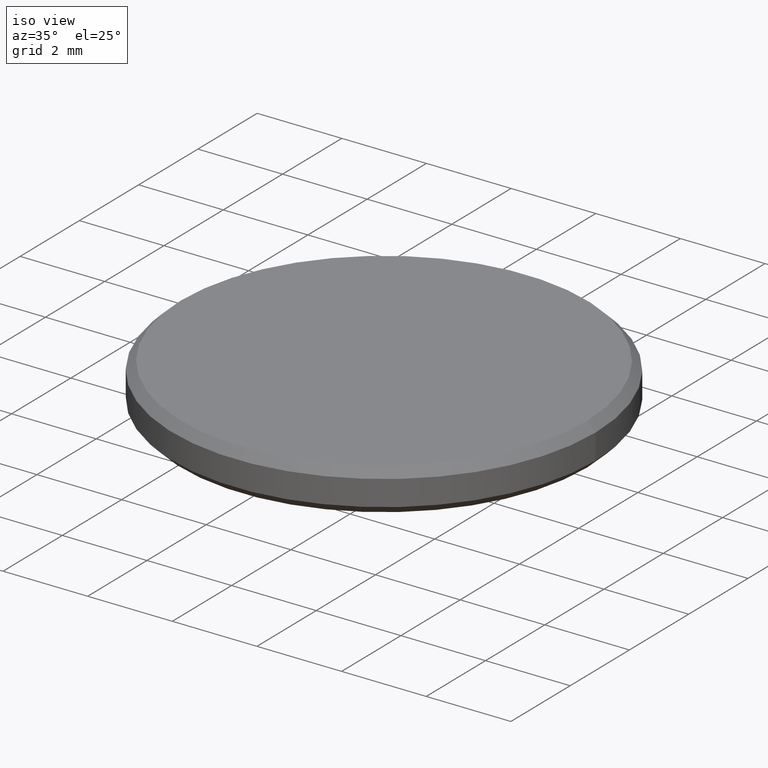
[diagram: clean part render]
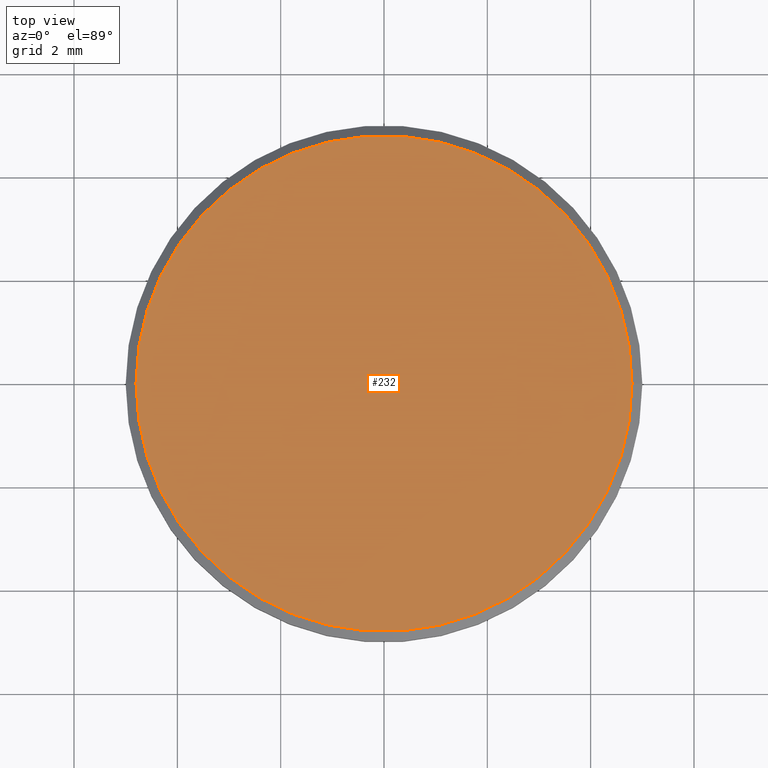
[diagram: tour spotlight — one face highlighted and labeled with its STEP entity id]
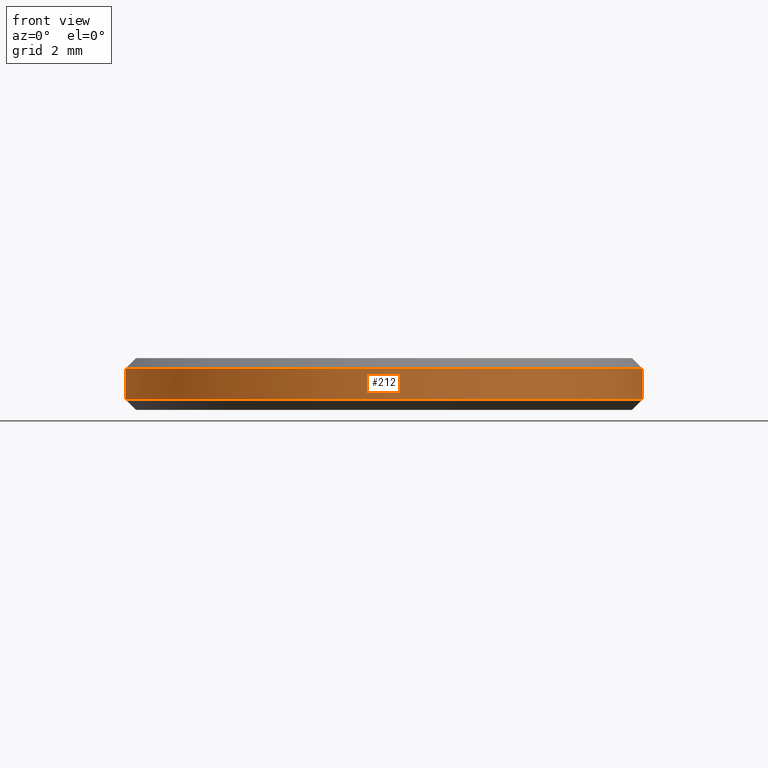
[diagram: tour spotlight — one face highlighted and labeled with its STEP entity id]
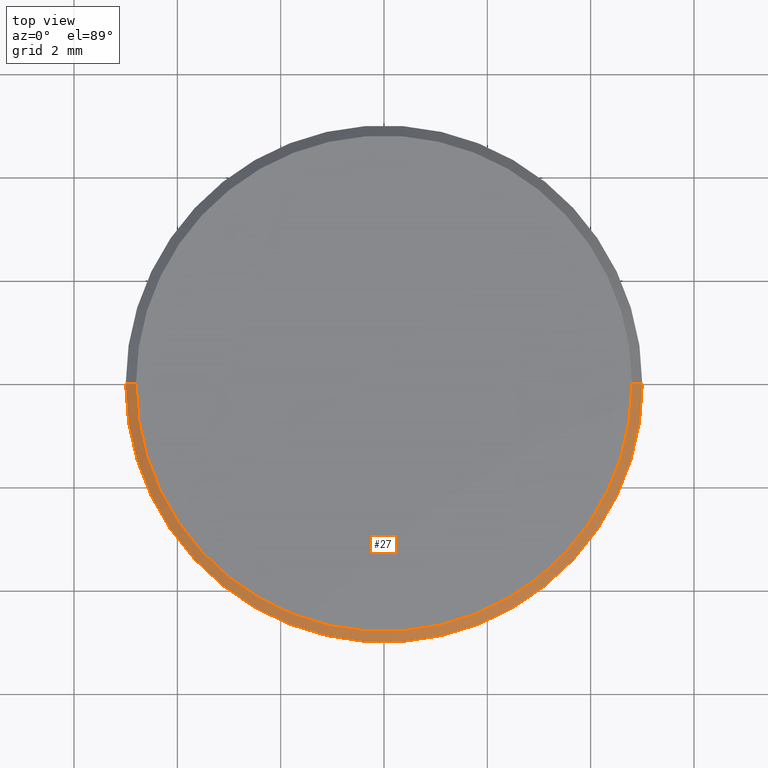
[diagram: tour spotlight — one face highlighted and labeled with its STEP entity id]
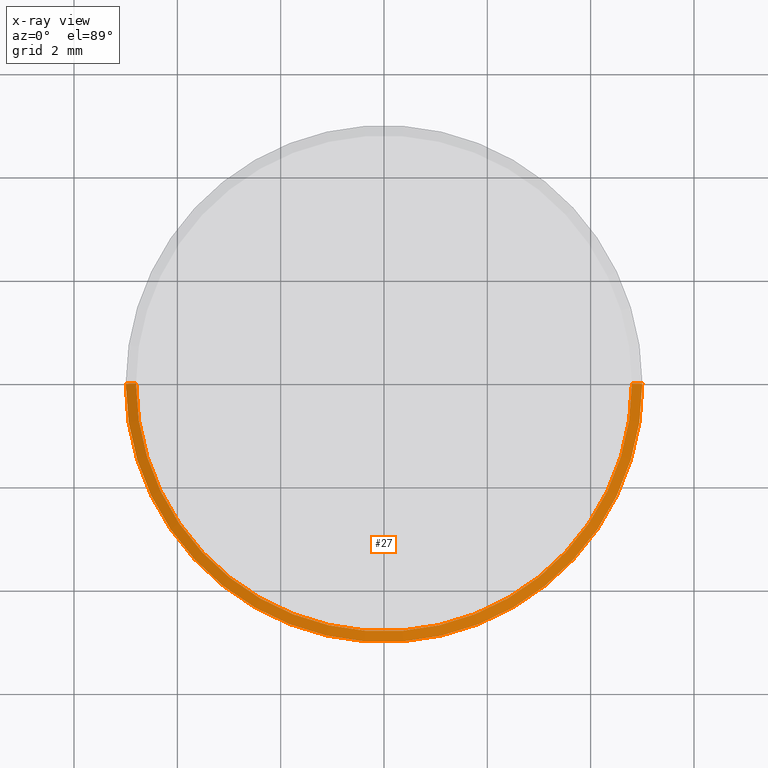
[diagram: x-ray of the same camera — body ghosted, this tour face saturated]
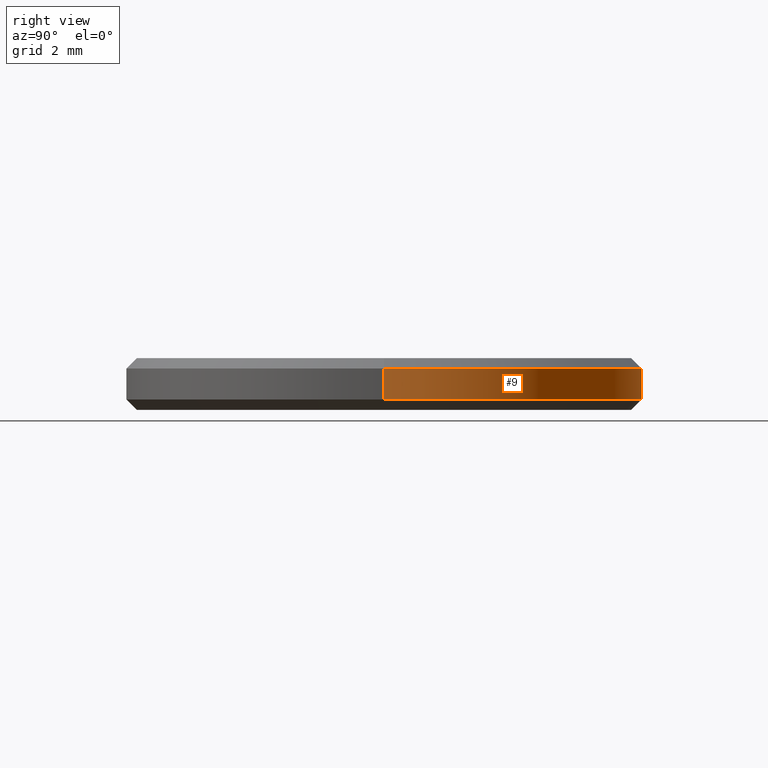
[diagram: tour spotlight — one face highlighted and labeled with its STEP entity id]
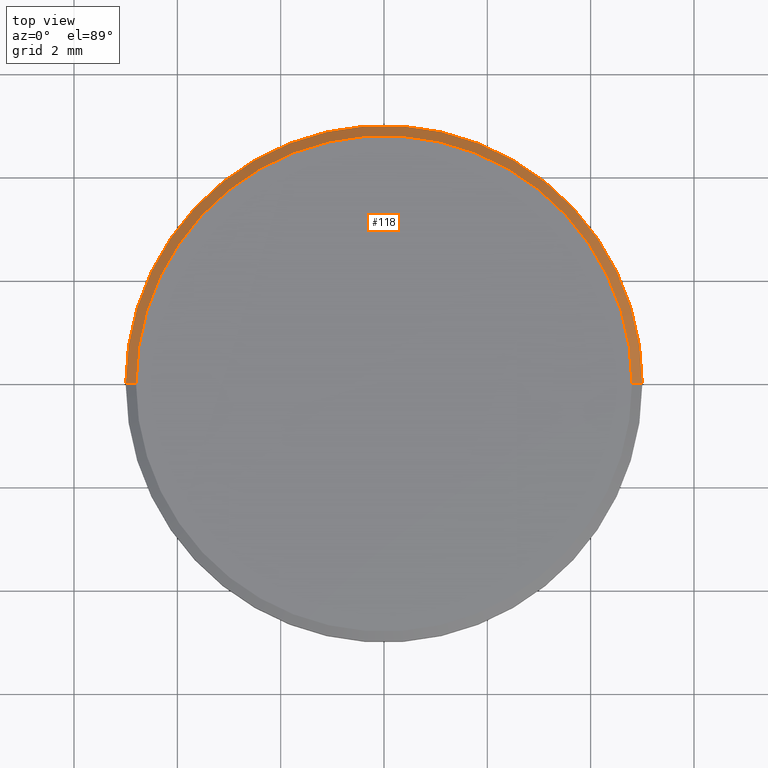
[diagram: tour spotlight — one face highlighted and labeled with its STEP entity id]
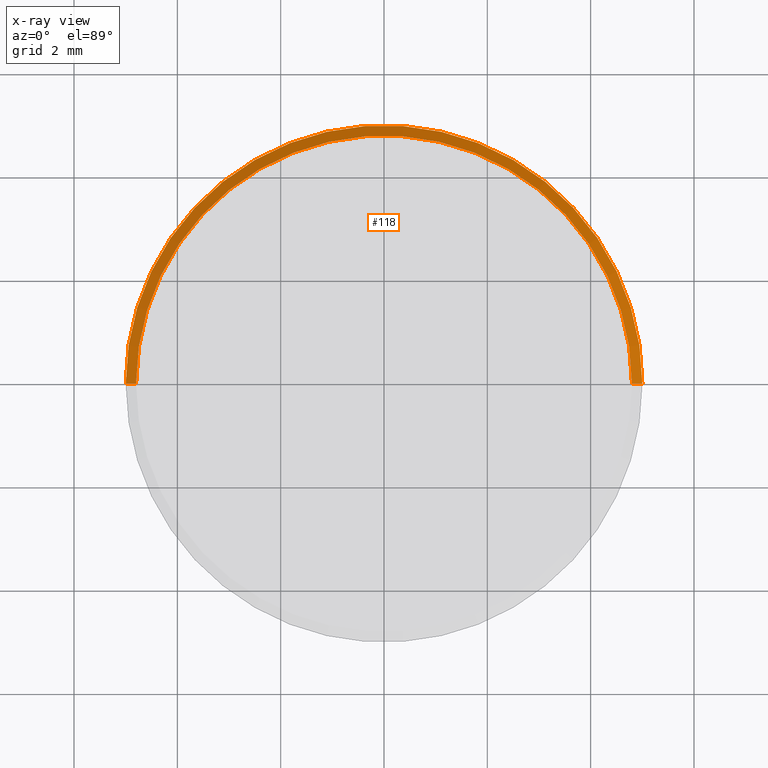
[diagram: x-ray of the same camera — body ghosted, this tour face saturated]
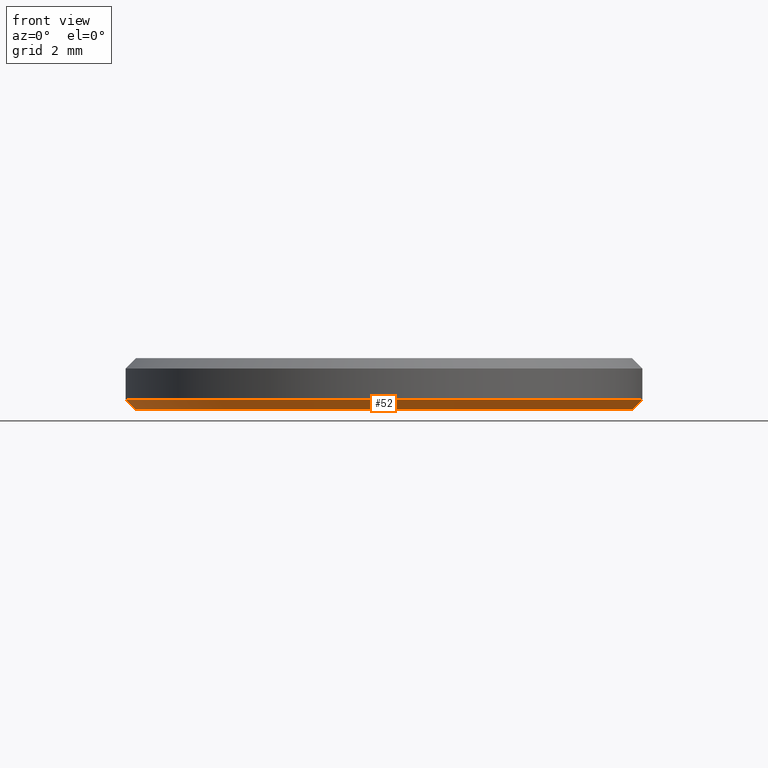
[diagram: tour spotlight — one face highlighted and labeled with its STEP entity id]
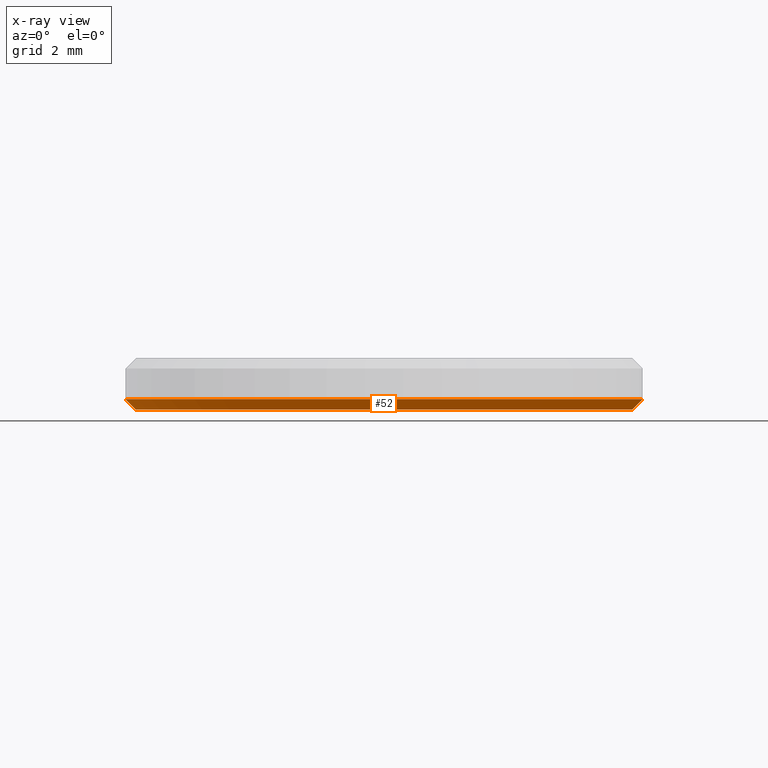
[diagram: x-ray of the same camera — body ghosted, this tour face saturated]
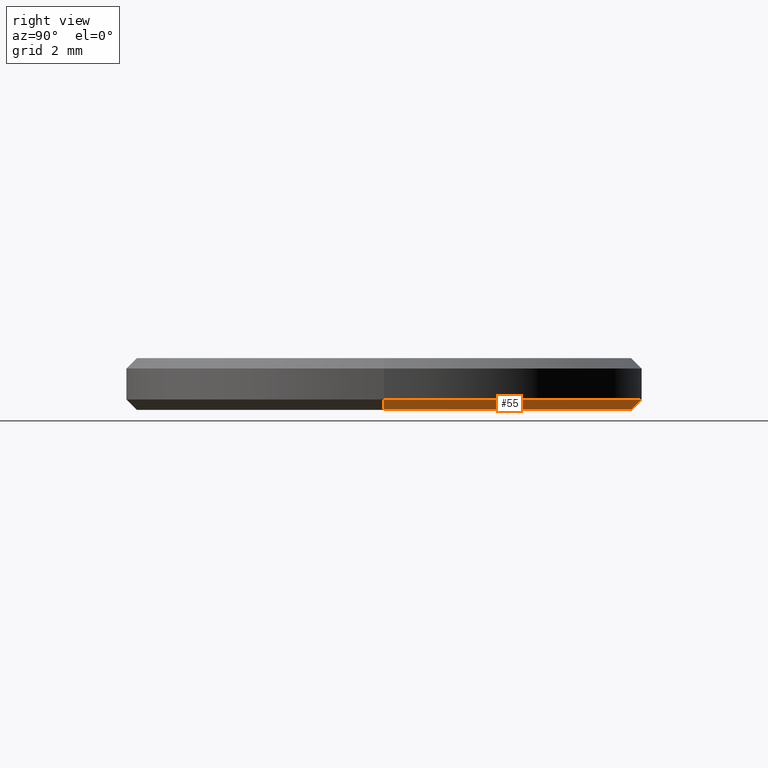
[diagram: tour spotlight — one face highlighted and labeled with its STEP entity id]
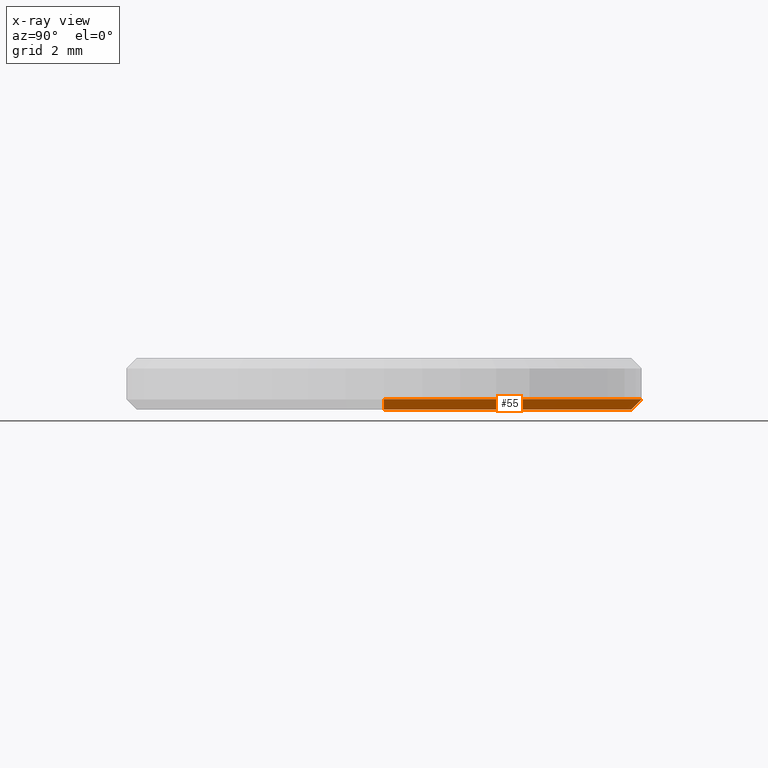
[diagram: x-ray of the same camera — body ghosted, this tour face saturated]
A machine part: a face-by-face anatomy tour. The part has 8 B-rep faces; the first image is the clean iso view, then the 7 largest visible faces are spotlighted one at a time (largest first), each with its STEP entity span.

Face 1 — top view, entity #232. In plain terms, the highlighted planar face has unit normal (0, 0, 1).
Definition (entity closure, byte-faithful):
#3 = FACE_OUTER_BOUND ( 'NONE', #76, .T. ) ;
#28 = AXIS2_PLACEMENT_3D ( 'NONE', #152, #227, #58 ) ;
#37 = CIRCLE ( 'NONE', #45, 4.800000000000002487 ) ;
#45 = AXIS2_PLACEMENT_3D ( 'NONE', #121, #124, #46 ) ;
#46 = DIRECTION ( 'NONE',  ( 1.000000000000000000, 0.000000000000000000, 0.000000000000000000 ) ) ;
#49 = AXIS2_PLACEMENT_3D ( 'NONE', #213, #120, #179 ) ;
#58 = DIRECTION ( 'NONE',  ( 1.000000000000000000, 0.000000000000000000, -0.000000000000000000 ) ) ;
#73 = EDGE_CURVE ( 'NONE', #189, #115, #37, .T. ) ;
#76 = EDGE_LOOP ( 'NONE', ( #127, #134 ) ) ;
#77 = PLANE ( 'NONE',  #28 ) ;
#115 = VERTEX_POINT ( 'NONE', #214 ) ;
#120 = DIRECTION ( 'NONE',  ( 0.000000000000000000, 0.000000000000000000, 1.000000000000000000 ) ) ;
#121 = CARTESIAN_POINT ( 'NONE',  ( 0.000000000000000000, 0.000000000000000000, 1.000000000000000000 ) ) ;
#124 = DIRECTION ( 'NONE',  ( 0.000000000000000000, 0.000000000000000000, 1.000000000000000000 ) ) ;
#127 = ORIENTED_EDGE ( 'NONE', *, *, #73, .T. ) ;
#134 = ORIENTED_EDGE ( 'NONE', *, *, #166, .T. ) ;
#149 = CIRCLE ( 'NONE', #49, 4.800000000000002487 ) ;
#152 = CARTESIAN_POINT ( 'NONE',  ( 0.000000000000000000, 0.000000000000000000, 1.000000000000000000 ) ) ;
#166 = EDGE_CURVE ( 'NONE', #115, #189, #149, .T. ) ;
#179 = DIRECTION ( 'NONE',  ( 1.000000000000000000, 0.000000000000000000, 0.000000000000000000 ) ) ;
#182 = CARTESIAN_POINT ( 'NONE',  ( -4.800000000000002487, 0.000000000000000000, 1.000000000000000000 ) ) ;
#189 = VERTEX_POINT ( 'NONE', #182 ) ;
#213 = CARTESIAN_POINT ( 'NONE',  ( 0.000000000000000000, 0.000000000000000000, 1.000000000000000000 ) ) ;
#214 = CARTESIAN_POINT ( 'NONE',  ( 4.800000000000002487, 6.000769315822031726E-16, 1.000000000000000000 ) ) ;
#227 = DIRECTION ( 'NONE',  ( 0.000000000000000000, 0.000000000000000000, 1.000000000000000000 ) ) ;
#232 = ADVANCED_FACE ( 'NONE', ( #3 ), #77, .T. ) ;

Face 2 — front view, entity #212. In plain terms, the highlighted cylindrical surface (partial cylindrical patch) has radius 5 mm, axis along (-0, -0, -1).
Definition (entity closure, byte-faithful):
#2 = DIRECTION ( 'NONE',  ( 0.000000000000000000, 0.000000000000000000, -1.000000000000000000 ) ) ;
#4 = AXIS2_PLACEMENT_3D ( 'NONE', #57, #190, #123 ) ;
#21 = CYLINDRICAL_SURFACE ( 'NONE', #79, 5.000000000000000000 ) ;
#39 = EDGE_CURVE ( 'NONE', #91, #151, #164, .T. ) ;
#42 = EDGE_CURVE ( 'NONE', #43, #92, #72, .T. ) ;
#43 = VERTEX_POINT ( 'NONE', #48 ) ;
#48 = CARTESIAN_POINT ( 'NONE',  ( -5.000000000000000000, 0.000000000000000000, 0.1999999999999996503 ) ) ;
#57 = CARTESIAN_POINT ( 'NONE',  ( 0.000000000000000000, 0.000000000000000000, 0.1999999999999996503 ) ) ;
#72 = CIRCLE ( 'NONE', #4, 5.000000000000000000 ) ;
#79 = AXIS2_PLACEMENT_3D ( 'NONE', #168, #210, #97 ) ;
#84 = EDGE_CURVE ( 'NONE', #91, #92, #201, .T. ) ;
#91 = VERTEX_POINT ( 'NONE', #103 ) ;
#92 = VERTEX_POINT ( 'NONE', #156 ) ;
#97 = DIRECTION ( 'NONE',  ( -1.000000000000000000, 0.000000000000000000, 0.000000000000000000 ) ) ;
#103 = CARTESIAN_POINT ( 'NONE',  ( 5.000000000000000000, 6.123233995736766282E-16, 0.8000000000000012657 ) ) ;
#111 = ORIENTED_EDGE ( 'NONE', *, *, #42, .T. ) ;
#119 = DIRECTION ( 'NONE',  ( -0.000000000000000000, -0.000000000000000000, -1.000000000000000000 ) ) ;
#122 = VECTOR ( 'NONE', #155, 1000.000000000000000 ) ;
#123 = DIRECTION ( 'NONE',  ( 1.000000000000000000, 0.000000000000000000, 0.000000000000000000 ) ) ;
#125 = VECTOR ( 'NONE', #119, 1000.000000000000000 ) ;
#131 = ORIENTED_EDGE ( 'NONE', *, *, #39, .T. ) ;
#139 = CARTESIAN_POINT ( 'NONE',  ( -5.000000000000000000, 0.000000000000000000, 0.8000000000000012657 ) ) ;
#140 = CARTESIAN_POINT ( 'NONE',  ( 5.000000000000000000, 6.123233995736766282E-16, 1.000000000000000000 ) ) ;
#148 = DIRECTION ( 'NONE',  ( 1.000000000000000000, 0.000000000000000000, 0.000000000000000000 ) ) ;
#151 = VERTEX_POINT ( 'NONE', #139 ) ;
#155 = DIRECTION ( 'NONE',  ( -0.000000000000000000, -0.000000000000000000, -1.000000000000000000 ) ) ;
#156 = CARTESIAN_POINT ( 'NONE',  ( 5.000000000000000000, 6.123233995736766282E-16, 0.1999999999999996503 ) ) ;
#164 = CIRCLE ( 'NONE', #237, 5.000000000000000000 ) ;
#168 = CARTESIAN_POINT ( 'NONE',  ( 0.000000000000000000, 0.000000000000000000, 1.000000000000000000 ) ) ;
#177 = CARTESIAN_POINT ( 'NONE',  ( -5.000000000000000000, 0.000000000000000000, 1.000000000000000000 ) ) ;
#181 = EDGE_CURVE ( 'NONE', #151, #43, #197, .T. ) ;
#185 = ORIENTED_EDGE ( 'NONE', *, *, #181, .T. ) ;
#190 = DIRECTION ( 'NONE',  ( -0.000000000000000000, -0.000000000000000000, 1.000000000000000000 ) ) ;
#195 = EDGE_LOOP ( 'NONE', ( #206, #131, #185, #111 ) ) ;
#197 = LINE ( 'NONE', #177, #122 ) ;
#201 = LINE ( 'NONE', #140, #125 ) ;
#206 = ORIENTED_EDGE ( 'NONE', *, *, #84, .F. ) ;
#210 = DIRECTION ( 'NONE',  ( -0.000000000000000000, -0.000000000000000000, -1.000000000000000000 ) ) ;
#212 = ADVANCED_FACE ( 'NONE', ( #238 ), #21, .T. ) ;
#222 = CARTESIAN_POINT ( 'NONE',  ( 0.000000000000000000, 0.000000000000000000, 0.8000000000000012657 ) ) ;
#237 = AXIS2_PLACEMENT_3D ( 'NONE', #222, #2, #148 ) ;
#238 = FACE_OUTER_BOUND ( 'NONE', #195, .T. ) ;

Face 3 — top view, entity #27. An x-ray twin of the same camera follows (body ghosted, this face saturated) — the face is partly hidden behind the body. In plain terms, the highlighted conical surface has half-angle 45 deg.
Definition (entity closure, byte-faithful):
#1 = FACE_OUTER_BOUND ( 'NONE', #208, .T. ) ;
#2 = DIRECTION ( 'NONE',  ( 0.000000000000000000, 0.000000000000000000, -1.000000000000000000 ) ) ;
#15 = LINE ( 'NONE', #90, #89 ) ;
#19 = ORIENTED_EDGE ( 'NONE', *, *, #73, .F. ) ;
#27 = ADVANCED_FACE ( 'NONE', ( #1 ), #176, .T. ) ;
#37 = CIRCLE ( 'NONE', #45, 4.800000000000002487 ) ;
#38 = ORIENTED_EDGE ( 'NONE', *, *, #39, .F. ) ;
#39 = EDGE_CURVE ( 'NONE', #91, #151, #164, .T. ) ;
#45 = AXIS2_PLACEMENT_3D ( 'NONE', #121, #124, #46 ) ;
#46 = DIRECTION ( 'NONE',  ( 1.000000000000000000, 0.000000000000000000, 0.000000000000000000 ) ) ;
#50 = DIRECTION ( 'NONE',  ( 0.7071067811865460184, 8.659560562354913137E-17, -0.7071067811865489050 ) ) ;
#73 = EDGE_CURVE ( 'NONE', #189, #115, #37, .T. ) ;
#75 = DIRECTION ( 'NONE',  ( -1.000000000000000000, 0.000000000000000000, 0.000000000000000000 ) ) ;
#89 = VECTOR ( 'NONE', #159, 1000.000000000000114 ) ;
#90 = CARTESIAN_POINT ( 'NONE',  ( -4.800000000000002487, 0.000000000000000000, 1.000000000000000000 ) ) ;
#91 = VERTEX_POINT ( 'NONE', #103 ) ;
#103 = CARTESIAN_POINT ( 'NONE',  ( 5.000000000000000000, 6.123233995736766282E-16, 0.8000000000000012657 ) ) ;
#115 = VERTEX_POINT ( 'NONE', #214 ) ;
#121 = CARTESIAN_POINT ( 'NONE',  ( 0.000000000000000000, 0.000000000000000000, 1.000000000000000000 ) ) ;
#124 = DIRECTION ( 'NONE',  ( 0.000000000000000000, 0.000000000000000000, 1.000000000000000000 ) ) ;
#126 = ORIENTED_EDGE ( 'NONE', *, *, #204, .T. ) ;
#129 = ORIENTED_EDGE ( 'NONE', *, *, #170, .F. ) ;
#139 = CARTESIAN_POINT ( 'NONE',  ( -5.000000000000000000, 0.000000000000000000, 0.8000000000000012657 ) ) ;
#147 = DIRECTION ( 'NONE',  ( 0.000000000000000000, 0.000000000000000000, -1.000000000000000000 ) ) ;
#148 = DIRECTION ( 'NONE',  ( 1.000000000000000000, 0.000000000000000000, 0.000000000000000000 ) ) ;
#151 = VERTEX_POINT ( 'NONE', #139 ) ;
#159 = DIRECTION ( 'NONE',  ( -0.7071067811865460184, 0.000000000000000000, -0.7071067811865489050 ) ) ;
#164 = CIRCLE ( 'NONE', #237, 5.000000000000000000 ) ;
#167 = CARTESIAN_POINT ( 'NONE',  ( 0.000000000000000000, 0.000000000000000000, 1.000000000000000000 ) ) ;
#170 = EDGE_CURVE ( 'NONE', #115, #91, #234, .T. ) ;
#171 = AXIS2_PLACEMENT_3D ( 'NONE', #167, #147, #75 ) ;
#174 = CARTESIAN_POINT ( 'NONE',  ( 4.800000000000002487, 5.878304635907297169E-16, 1.000000000000000000 ) ) ;
#176 = CONICAL_SURFACE ( 'NONE', #171, 4.800000000000002487, 0.7853981633974461696 ) ;
#182 = CARTESIAN_POINT ( 'NONE',  ( -4.800000000000002487, 0.000000000000000000, 1.000000000000000000 ) ) ;
#188 = VECTOR ( 'NONE', #50, 1000.000000000000114 ) ;
#189 = VERTEX_POINT ( 'NONE', #182 ) ;
#204 = EDGE_CURVE ( 'NONE', #189, #151, #15, .T. ) ;
#208 = EDGE_LOOP ( 'NONE', ( #129, #19, #126, #38 ) ) ;
#214 = CARTESIAN_POINT ( 'NONE',  ( 4.800000000000002487, 6.000769315822031726E-16, 1.000000000000000000 ) ) ;
#222 = CARTESIAN_POINT ( 'NONE',  ( 0.000000000000000000, 0.000000000000000000, 0.8000000000000012657 ) ) ;
#234 = LINE ( 'NONE', #174, #188 ) ;
#237 = AXIS2_PLACEMENT_3D ( 'NONE', #222, #2, #148 ) ;

Face 4 — right view, entity #9. In plain terms, the highlighted cylindrical surface (partial cylindrical patch) has radius 5 mm, axis along (-0, -0, -1).
Definition (entity closure, byte-faithful):
#9 = ADVANCED_FACE ( 'NONE', ( #228 ), #136, .T. ) ;
#17 = EDGE_CURVE ( 'NONE', #92, #43, #162, .T. ) ;
#25 = EDGE_LOOP ( 'NONE', ( #150, #193, #226, #40 ) ) ;
#29 = DIRECTION ( 'NONE',  ( -0.000000000000000000, -0.000000000000000000, 1.000000000000000000 ) ) ;
#40 = ORIENTED_EDGE ( 'NONE', *, *, #181, .F. ) ;
#43 = VERTEX_POINT ( 'NONE', #48 ) ;
#44 = DIRECTION ( 'NONE',  ( -0.000000000000000000, -0.000000000000000000, -1.000000000000000000 ) ) ;
#48 = CARTESIAN_POINT ( 'NONE',  ( -5.000000000000000000, 0.000000000000000000, 0.1999999999999996503 ) ) ;
#59 = CIRCLE ( 'NONE', #74, 5.000000000000000000 ) ;
#74 = AXIS2_PLACEMENT_3D ( 'NONE', #180, #137, #142 ) ;
#84 = EDGE_CURVE ( 'NONE', #91, #92, #201, .T. ) ;
#91 = VERTEX_POINT ( 'NONE', #103 ) ;
#92 = VERTEX_POINT ( 'NONE', #156 ) ;
#101 = DIRECTION ( 'NONE',  ( 1.000000000000000000, 0.000000000000000000, 0.000000000000000000 ) ) ;
#103 = CARTESIAN_POINT ( 'NONE',  ( 5.000000000000000000, 6.123233995736766282E-16, 0.8000000000000012657 ) ) ;
#112 = EDGE_CURVE ( 'NONE', #151, #91, #59, .T. ) ;
#116 = DIRECTION ( 'NONE',  ( -1.000000000000000000, 0.000000000000000000, 0.000000000000000000 ) ) ;
#119 = DIRECTION ( 'NONE',  ( -0.000000000000000000, -0.000000000000000000, -1.000000000000000000 ) ) ;
#122 = VECTOR ( 'NONE', #155, 1000.000000000000000 ) ;
#125 = VECTOR ( 'NONE', #119, 1000.000000000000000 ) ;
#136 = CYLINDRICAL_SURFACE ( 'NONE', #233, 5.000000000000000000 ) ;
#137 = DIRECTION ( 'NONE',  ( 0.000000000000000000, 0.000000000000000000, -1.000000000000000000 ) ) ;
#139 = CARTESIAN_POINT ( 'NONE',  ( -5.000000000000000000, 0.000000000000000000, 0.8000000000000012657 ) ) ;
#140 = CARTESIAN_POINT ( 'NONE',  ( 5.000000000000000000, 6.123233995736766282E-16, 1.000000000000000000 ) ) ;
#142 = DIRECTION ( 'NONE',  ( 1.000000000000000000, 0.000000000000000000, 0.000000000000000000 ) ) ;
#143 = AXIS2_PLACEMENT_3D ( 'NONE', #224, #29, #101 ) ;
#150 = ORIENTED_EDGE ( 'NONE', *, *, #112, .T. ) ;
#151 = VERTEX_POINT ( 'NONE', #139 ) ;
#155 = DIRECTION ( 'NONE',  ( -0.000000000000000000, -0.000000000000000000, -1.000000000000000000 ) ) ;
#156 = CARTESIAN_POINT ( 'NONE',  ( 5.000000000000000000, 6.123233995736766282E-16, 0.1999999999999996503 ) ) ;
#162 = CIRCLE ( 'NONE', #143, 5.000000000000000000 ) ;
#177 = CARTESIAN_POINT ( 'NONE',  ( -5.000000000000000000, 0.000000000000000000, 1.000000000000000000 ) ) ;
#180 = CARTESIAN_POINT ( 'NONE',  ( 0.000000000000000000, 0.000000000000000000, 0.8000000000000012657 ) ) ;
#181 = EDGE_CURVE ( 'NONE', #151, #43, #197, .T. ) ;
#193 = ORIENTED_EDGE ( 'NONE', *, *, #84, .T. ) ;
#197 = LINE ( 'NONE', #177, #122 ) ;
#201 = LINE ( 'NONE', #140, #125 ) ;
#209 = CARTESIAN_POINT ( 'NONE',  ( 0.000000000000000000, 0.000000000000000000, 1.000000000000000000 ) ) ;
#224 = CARTESIAN_POINT ( 'NONE',  ( 0.000000000000000000, 0.000000000000000000, 0.1999999999999996503 ) ) ;
#226 = ORIENTED_EDGE ( 'NONE', *, *, #17, .T. ) ;
#228 = FACE_OUTER_BOUND ( 'NONE', #25, .T. ) ;
#233 = AXIS2_PLACEMENT_3D ( 'NONE', #209, #44, #116 ) ;

Face 5 — top view, entity #118. An x-ray twin of the same camera follows (body ghosted, this face saturated) — the face is partly hidden behind the body. In plain terms, the highlighted conical surface has half-angle 45 deg.
Definition (entity closure, byte-faithful):
#15 = LINE ( 'NONE', #90, #89 ) ;
#23 = EDGE_LOOP ( 'NONE', ( #160, #169, #96, #62 ) ) ;
#30 = DIRECTION ( 'NONE',  ( 0.000000000000000000, 0.000000000000000000, -1.000000000000000000 ) ) ;
#49 = AXIS2_PLACEMENT_3D ( 'NONE', #213, #120, #179 ) ;
#50 = DIRECTION ( 'NONE',  ( 0.7071067811865460184, 8.659560562354913137E-17, -0.7071067811865489050 ) ) ;
#59 = CIRCLE ( 'NONE', #74, 5.000000000000000000 ) ;
#62 = ORIENTED_EDGE ( 'NONE', *, *, #204, .F. ) ;
#70 = AXIS2_PLACEMENT_3D ( 'NONE', #106, #30, #85 ) ;
#74 = AXIS2_PLACEMENT_3D ( 'NONE', #180, #137, #142 ) ;
#85 = DIRECTION ( 'NONE',  ( -1.000000000000000000, 0.000000000000000000, 0.000000000000000000 ) ) ;
#89 = VECTOR ( 'NONE', #159, 1000.000000000000114 ) ;
#90 = CARTESIAN_POINT ( 'NONE',  ( -4.800000000000002487, 0.000000000000000000, 1.000000000000000000 ) ) ;
#91 = VERTEX_POINT ( 'NONE', #103 ) ;
#93 = CONICAL_SURFACE ( 'NONE', #70, 4.800000000000002487, 0.7853981633974461696 ) ;
#96 = ORIENTED_EDGE ( 'NONE', *, *, #112, .F. ) ;
#103 = CARTESIAN_POINT ( 'NONE',  ( 5.000000000000000000, 6.123233995736766282E-16, 0.8000000000000012657 ) ) ;
#106 = CARTESIAN_POINT ( 'NONE',  ( 0.000000000000000000, 0.000000000000000000, 1.000000000000000000 ) ) ;
#112 = EDGE_CURVE ( 'NONE', #151, #91, #59, .T. ) ;
#115 = VERTEX_POINT ( 'NONE', #214 ) ;
#118 = ADVANCED_FACE ( 'NONE', ( #211 ), #93, .T. ) ;
#120 = DIRECTION ( 'NONE',  ( 0.000000000000000000, 0.000000000000000000, 1.000000000000000000 ) ) ;
#137 = DIRECTION ( 'NONE',  ( 0.000000000000000000, 0.000000000000000000, -1.000000000000000000 ) ) ;
#139 = CARTESIAN_POINT ( 'NONE',  ( -5.000000000000000000, 0.000000000000000000, 0.8000000000000012657 ) ) ;
#142 = DIRECTION ( 'NONE',  ( 1.000000000000000000, 0.000000000000000000, 0.000000000000000000 ) ) ;
#149 = CIRCLE ( 'NONE', #49, 4.800000000000002487 ) ;
#151 = VERTEX_POINT ( 'NONE', #139 ) ;
#159 = DIRECTION ( 'NONE',  ( -0.7071067811865460184, 0.000000000000000000, -0.7071067811865489050 ) ) ;
#160 = ORIENTED_EDGE ( 'NONE', *, *, #166, .F. ) ;
#166 = EDGE_CURVE ( 'NONE', #115, #189, #149, .T. ) ;
#169 = ORIENTED_EDGE ( 'NONE', *, *, #170, .T. ) ;
#170 = EDGE_CURVE ( 'NONE', #115, #91, #234, .T. ) ;
#174 = CARTESIAN_POINT ( 'NONE',  ( 4.800000000000002487, 5.878304635907297169E-16, 1.000000000000000000 ) ) ;
#179 = DIRECTION ( 'NONE',  ( 1.000000000000000000, 0.000000000000000000, 0.000000000000000000 ) ) ;
#180 = CARTESIAN_POINT ( 'NONE',  ( 0.000000000000000000, 0.000000000000000000, 0.8000000000000012657 ) ) ;
#182 = CARTESIAN_POINT ( 'NONE',  ( -4.800000000000002487, 0.000000000000000000, 1.000000000000000000 ) ) ;
#188 = VECTOR ( 'NONE', #50, 1000.000000000000114 ) ;
#189 = VERTEX_POINT ( 'NONE', #182 ) ;
#204 = EDGE_CURVE ( 'NONE', #189, #151, #15, .T. ) ;
#211 = FACE_OUTER_BOUND ( 'NONE', #23, .T. ) ;
#213 = CARTESIAN_POINT ( 'NONE',  ( 0.000000000000000000, 0.000000000000000000, 1.000000000000000000 ) ) ;
#214 = CARTESIAN_POINT ( 'NONE',  ( 4.800000000000002487, 6.000769315822031726E-16, 1.000000000000000000 ) ) ;
#234 = LINE ( 'NONE', #174, #188 ) ;

Face 6 — front view, entity #52. An x-ray twin of the same camera follows (body ghosted, this face saturated) — the face is partly hidden behind the body. In plain terms, the highlighted conical surface has half-angle 45 deg.
Definition (entity closure, byte-faithful):
#4 = AXIS2_PLACEMENT_3D ( 'NONE', #57, #190, #123 ) ;
#10 = DIRECTION ( 'NONE',  ( -0.000000000000000000, -0.000000000000000000, 1.000000000000000000 ) ) ;
#13 = DIRECTION ( 'NONE',  ( 0.7071067811865490160, 0.000000000000000000, 0.7071067811865459074 ) ) ;
#31 = AXIS2_PLACEMENT_3D ( 'NONE', #175, #10, #229 ) ;
#36 = DIRECTION ( 'NONE',  ( -0.7071067811865490160, 8.659560562354950115E-17, 0.7071067811865459074 ) ) ;
#42 = EDGE_CURVE ( 'NONE', #43, #92, #72, .T. ) ;
#43 = VERTEX_POINT ( 'NONE', #48 ) ;
#48 = CARTESIAN_POINT ( 'NONE',  ( -5.000000000000000000, 0.000000000000000000, 0.1999999999999996503 ) ) ;
#51 = CARTESIAN_POINT ( 'NONE',  ( 5.000000000000000000, 0.000000000000000000, 0.1999999999999996503 ) ) ;
#52 = ADVANCED_FACE ( 'NONE', ( #88 ), #144, .T. ) ;
#57 = CARTESIAN_POINT ( 'NONE',  ( 0.000000000000000000, 0.000000000000000000, 0.1999999999999996503 ) ) ;
#60 = DIRECTION ( 'NONE',  ( -0.000000000000000000, -0.000000000000000000, -1.000000000000000000 ) ) ;
#63 = ORIENTED_EDGE ( 'NONE', *, *, #220, .F. ) ;
#64 = LINE ( 'NONE', #51, #128 ) ;
#65 = LINE ( 'NONE', #104, #178 ) ;
#72 = CIRCLE ( 'NONE', #4, 5.000000000000000000 ) ;
#78 = EDGE_CURVE ( 'NONE', #113, #92, #64, .T. ) ;
#88 = FACE_OUTER_BOUND ( 'NONE', #186, .T. ) ;
#92 = VERTEX_POINT ( 'NONE', #156 ) ;
#104 = CARTESIAN_POINT ( 'NONE',  ( -5.000000000000000000, 6.123233995736765296E-16, 0.1999999999999996503 ) ) ;
#110 = EDGE_CURVE ( 'NONE', #145, #43, #65, .T. ) ;
#113 = VERTEX_POINT ( 'NONE', #217 ) ;
#123 = DIRECTION ( 'NONE',  ( 1.000000000000000000, 0.000000000000000000, 0.000000000000000000 ) ) ;
#128 = VECTOR ( 'NONE', #13, 1000.000000000000000 ) ;
#133 = DIRECTION ( 'NONE',  ( 1.000000000000000000, 0.000000000000000000, 0.000000000000000000 ) ) ;
#135 = CARTESIAN_POINT ( 'NONE',  ( 0.000000000000000000, 0.000000000000000000, 0.000000000000000000 ) ) ;
#144 = CONICAL_SURFACE ( 'NONE', #31, 5.000000000000000000, 0.7853981633974503884 ) ;
#145 = VERTEX_POINT ( 'NONE', #154 ) ;
#154 = CARTESIAN_POINT ( 'NONE',  ( -4.799999999999999822, 6.000769315822029754E-16, 0.000000000000000000 ) ) ;
#156 = CARTESIAN_POINT ( 'NONE',  ( 5.000000000000000000, 6.123233995736766282E-16, 0.1999999999999996503 ) ) ;
#161 = ORIENTED_EDGE ( 'NONE', *, *, #78, .T. ) ;
#175 = CARTESIAN_POINT ( 'NONE',  ( 0.000000000000000000, 0.000000000000000000, 0.1999999999999996503 ) ) ;
#178 = VECTOR ( 'NONE', #36, 1000.000000000000000 ) ;
#186 = EDGE_LOOP ( 'NONE', ( #218, #63, #161, #219 ) ) ;
#190 = DIRECTION ( 'NONE',  ( -0.000000000000000000, -0.000000000000000000, 1.000000000000000000 ) ) ;
#203 = CIRCLE ( 'NONE', #215, 4.799999999999999822 ) ;
#215 = AXIS2_PLACEMENT_3D ( 'NONE', #135, #60, #133 ) ;
#217 = CARTESIAN_POINT ( 'NONE',  ( 4.799999999999999822, 0.000000000000000000, 0.000000000000000000 ) ) ;
#218 = ORIENTED_EDGE ( 'NONE', *, *, #110, .F. ) ;
#219 = ORIENTED_EDGE ( 'NONE', *, *, #42, .F. ) ;
#220 = EDGE_CURVE ( 'NONE', #113, #145, #203, .T. ) ;
#229 = DIRECTION ( 'NONE',  ( 1.000000000000000000, 0.000000000000000000, 0.000000000000000000 ) ) ;

Face 7 — right view, entity #55. An x-ray twin of the same camera follows (body ghosted, this face saturated) — the face is partly hidden behind the body. In plain terms, the highlighted conical surface has half-angle 45 deg.
Definition (entity closure, byte-faithful):
#6 = CIRCLE ( 'NONE', #172, 4.799999999999999822 ) ;
#7 = EDGE_LOOP ( 'NONE', ( #109, #98, #71, #81 ) ) ;
#12 = DIRECTION ( 'NONE',  ( 1.000000000000000000, 0.000000000000000000, 0.000000000000000000 ) ) ;
#13 = DIRECTION ( 'NONE',  ( 0.7071067811865490160, 0.000000000000000000, 0.7071067811865459074 ) ) ;
#17 = EDGE_CURVE ( 'NONE', #92, #43, #162, .T. ) ;
#29 = DIRECTION ( 'NONE',  ( -0.000000000000000000, -0.000000000000000000, 1.000000000000000000 ) ) ;
#36 = DIRECTION ( 'NONE',  ( -0.7071067811865490160, 8.659560562354950115E-17, 0.7071067811865459074 ) ) ;
#43 = VERTEX_POINT ( 'NONE', #48 ) ;
#47 = DIRECTION ( 'NONE',  ( -0.000000000000000000, -0.000000000000000000, 1.000000000000000000 ) ) ;
#48 = CARTESIAN_POINT ( 'NONE',  ( -5.000000000000000000, 0.000000000000000000, 0.1999999999999996503 ) ) ;
#51 = CARTESIAN_POINT ( 'NONE',  ( 5.000000000000000000, 0.000000000000000000, 0.1999999999999996503 ) ) ;
#55 = ADVANCED_FACE ( 'NONE', ( #236 ), #235, .T. ) ;
#64 = LINE ( 'NONE', #51, #128 ) ;
#65 = LINE ( 'NONE', #104, #178 ) ;
#67 = CARTESIAN_POINT ( 'NONE',  ( 0.000000000000000000, 0.000000000000000000, 0.000000000000000000 ) ) ;
#71 = ORIENTED_EDGE ( 'NONE', *, *, #17, .F. ) ;
#78 = EDGE_CURVE ( 'NONE', #113, #92, #64, .T. ) ;
#81 = ORIENTED_EDGE ( 'NONE', *, *, #78, .F. ) ;
#83 = DIRECTION ( 'NONE',  ( 1.000000000000000000, 0.000000000000000000, 0.000000000000000000 ) ) ;
#86 = CARTESIAN_POINT ( 'NONE',  ( 0.000000000000000000, 0.000000000000000000, 0.1999999999999996503 ) ) ;
#92 = VERTEX_POINT ( 'NONE', #156 ) ;
#98 = ORIENTED_EDGE ( 'NONE', *, *, #110, .T. ) ;
#101 = DIRECTION ( 'NONE',  ( 1.000000000000000000, 0.000000000000000000, 0.000000000000000000 ) ) ;
#104 = CARTESIAN_POINT ( 'NONE',  ( -5.000000000000000000, 6.123233995736765296E-16, 0.1999999999999996503 ) ) ;
#107 = EDGE_CURVE ( 'NONE', #145, #113, #6, .T. ) ;
#109 = ORIENTED_EDGE ( 'NONE', *, *, #107, .F. ) ;
#110 = EDGE_CURVE ( 'NONE', #145, #43, #65, .T. ) ;
#113 = VERTEX_POINT ( 'NONE', #217 ) ;
#128 = VECTOR ( 'NONE', #13, 1000.000000000000000 ) ;
#143 = AXIS2_PLACEMENT_3D ( 'NONE', #224, #29, #101 ) ;
#145 = VERTEX_POINT ( 'NONE', #154 ) ;
#146 = AXIS2_PLACEMENT_3D ( 'NONE', #86, #47, #83 ) ;
#154 = CARTESIAN_POINT ( 'NONE',  ( -4.799999999999999822, 6.000769315822029754E-16, 0.000000000000000000 ) ) ;
#156 = CARTESIAN_POINT ( 'NONE',  ( 5.000000000000000000, 6.123233995736766282E-16, 0.1999999999999996503 ) ) ;
#162 = CIRCLE ( 'NONE', #143, 5.000000000000000000 ) ;
#172 = AXIS2_PLACEMENT_3D ( 'NONE', #67, #200, #12 ) ;
#178 = VECTOR ( 'NONE', #36, 1000.000000000000000 ) ;
#200 = DIRECTION ( 'NONE',  ( -0.000000000000000000, -0.000000000000000000, -1.000000000000000000 ) ) ;
#217 = CARTESIAN_POINT ( 'NONE',  ( 4.799999999999999822, 0.000000000000000000, 0.000000000000000000 ) ) ;
#224 = CARTESIAN_POINT ( 'NONE',  ( 0.000000000000000000, 0.000000000000000000, 0.1999999999999996503 ) ) ;
#235 = CONICAL_SURFACE ( 'NONE', #146, 5.000000000000000000, 0.7853981633974503884 ) ;
#236 = FACE_OUTER_BOUND ( 'NONE', #7, .T. ) ;